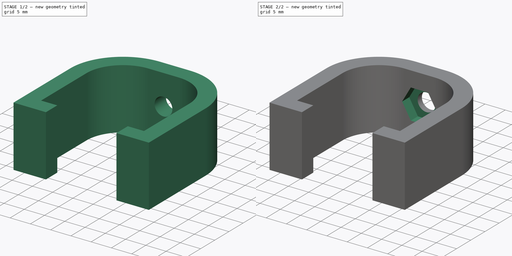
[diagram: build sequence overview — one tinted view per stage of 2, left to right]
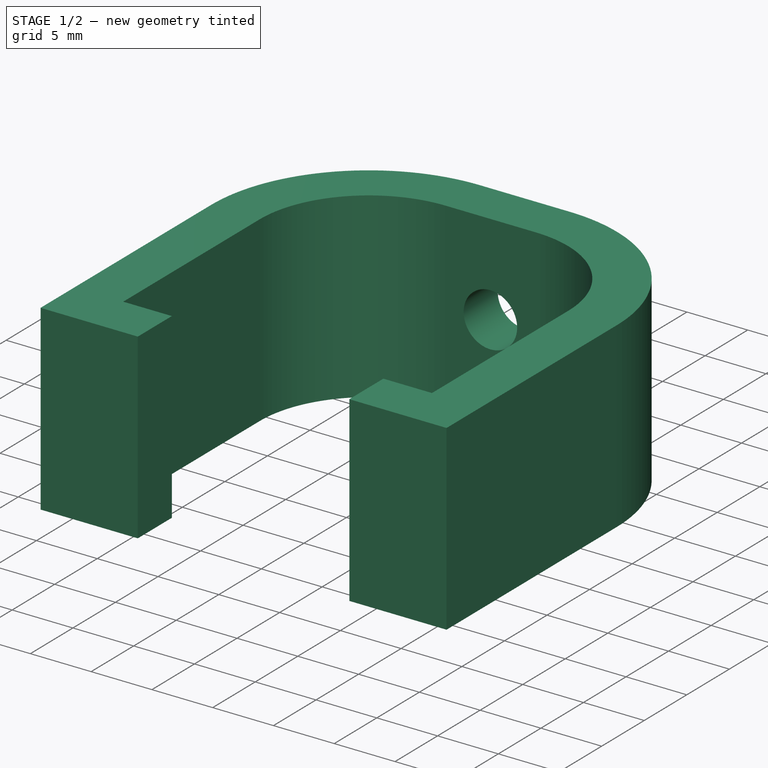
[diagram: stage 1 of 2 — iso view after this stage's code; geometry added in this stage tinted green]
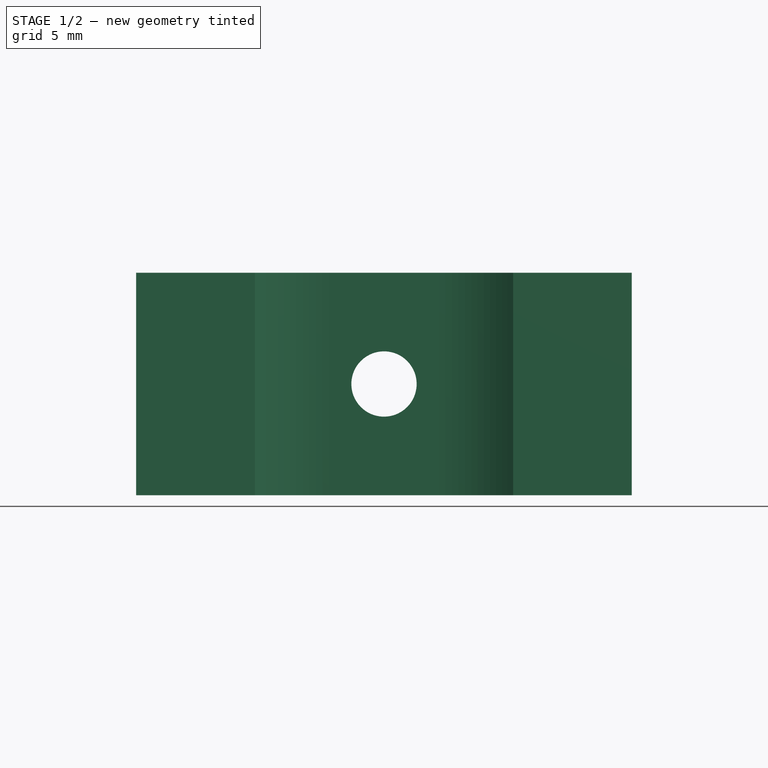
[diagram: stage 1 of 2 — front view after this stage's code; geometry added in this stage tinted green]
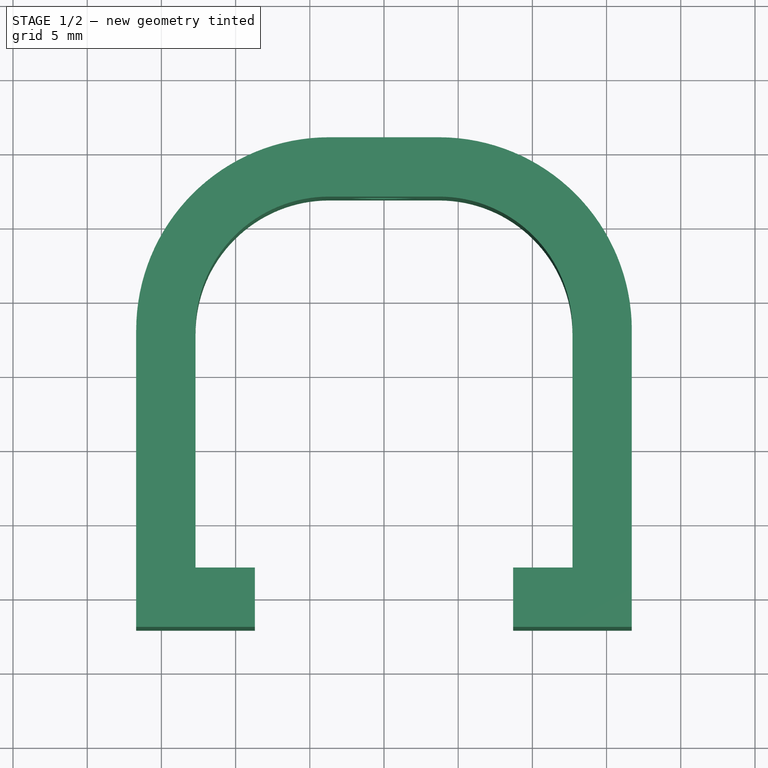
[diagram: stage 1 of 2 — top view after this stage's code; geometry added in this stage tinted green]
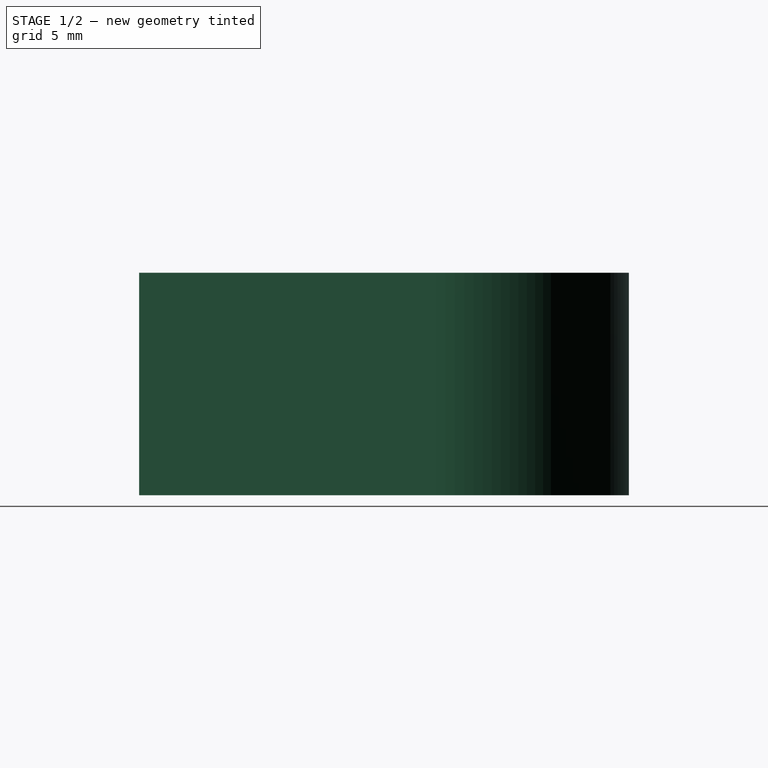
[diagram: stage 1 of 2 — right view after this stage's code; geometry added in this stage tinted green]
FCSTD DOCUMENT  (FreeCAD 0.18R16131 (Git))
Label: pen_holder_bracket
License: All rights reserved
LicenseURL: http://en.wikipedia.org/wiki/All_rights_reserved
objects: Sketcher::SketchObject×3, PartDesign::Pocket×2, PartDesign::Pad×1, PartDesign::Body×1
note: 10 computed .brp shape members not serialized (recipe doc carries the construction recipe); baked Part::Feature solids carry a one-line shape summary decoded from their .brp

FEATURE [Sketcher::SketchObject] Sketch
  MapMode = 5
  Support = -> [XY_Plane]
  sketch-geometry (16):
    g0: LineSegment StartX=-12.7 StartY=-13.087 StartZ=0 EndX=-8.7 EndY=-13.087 EndZ=0
    g1: LineSegment StartX=-8.7 StartY=-13.087 StartZ=0 EndX=-8.7 EndY=-17.087 EndZ=0
    g2: LineSegment StartX=-8.7 StartY=-17.087 StartZ=0 EndX=-16.7 EndY=-17.087 EndZ=0
    g3: LineSegment StartX=-16.7 StartY=-17.087 StartZ=0 EndX=-16.7 EndY=2.91302 EndZ=0
    g4: LineSegment StartX=-3.7 StartY=15.913 StartZ=0 EndX=3.7 EndY=15.913 EndZ=0
    g5: LineSegment StartX=16.7 StartY=2.91302 StartZ=0 EndX=16.7 EndY=-17.087 EndZ=0
    g6: LineSegment StartX=16.7 StartY=-17.087 StartZ=0 EndX=8.7 EndY=-17.087 EndZ=0
    g7: LineSegment StartX=8.7 StartY=-17.087 StartZ=0 EndX=8.7 EndY=-13.087 EndZ=0
    g8: LineSegment StartX=8.7 StartY=-13.087 StartZ=0 EndX=12.7 EndY=-13.087 EndZ=0
    g9: LineSegment StartX=12.7 StartY=-13.087 StartZ=0 EndX=12.7 EndY=2.91302 EndZ=0
    g10: LineSegment StartX=3.7 StartY=11.913 StartZ=0 EndX=-3.7 EndY=11.913 EndZ=0
    g11: LineSegment StartX=-12.7 StartY=2.91302 StartZ=0 EndX=-12.7 EndY=-13.087 EndZ=0
    g12: ArcOfCircle CenterX=-3.7 CenterY=2.91302 CenterZ=0 NormalX=0 NormalY=0 NormalZ=1 AngleXU=0 Radius=9 StartAngle=1.5708 EndAngle=3.14159
    g13: ArcOfCircle CenterX=3.7 CenterY=2.91302 CenterZ=0 NormalX=0 NormalY=0 NormalZ=1 AngleXU=0 Radius=9 StartAngle=1.11e-14 EndAngle=1.5708
    g14: ArcOfCircle CenterX=-3.7 CenterY=2.91302 CenterZ=0 NormalX=0 NormalY=0 NormalZ=1 AngleXU=0 Radius=13 StartAngle=1.5708 EndAngle=3.14159
    g15: ArcOfCircle CenterX=3.7 CenterY=2.91302 CenterZ=0 NormalX=0 NormalY=0 NormalZ=1 AngleXU=0 Radius=13 StartAngle=0 EndAngle=1.5708
  constraints (40):
    c: Coincident(g0,g1)
    c: Coincident(g1,g2)
    c: Coincident(g2,g3)
    c: Coincident(g5,g6)
    c: Coincident(g6,g7)
    c: Coincident(g7,g8)
    c: Coincident(g8,g9)
    c: Coincident(g11,g0)
    c: Vertical(g3)
    c: Vertical(g11)
    c: Vertical(g9)
    c: Vertical(g5)
    c: Vertical(g7)
    c: Vertical(g1)
    c: Horizontal(g4)
    c: Horizontal(g10)
    c: Horizontal(g0)
    c: Horizontal(g2)
    c: Horizontal(g6)
    c: DistanceY(g1,g0) = 4
    c: DistanceX(g0,g0) = 4
    c: Symmetric(g0,g7,g-2)
    c: Symmetric(g0,g8,g-2)
    c: Symmetric(g2,g5,g-2)
    c: DistanceX(g1,g6) = 17.4
    c: Tangent(g10,g12) = -1.5708
    c: Tangent(g11,g12) = -1.5708
    c: Tangent(g9,g13) = -1.5708
    c: Tangent(g10,g13) = -1.5708
    c: Tangent(g3,g14) = 1.5708
    c: Tangent(g4,g14) = 1.5708
    c: Tangent(g4,g15) = 1.5708
    c: Tangent(g5,g15) = 1.5708
    c: Equal(g13,g12)
    c: Equal(g14,g15)
    c: Radius(g13) = 9
    c: Radius(g15) = 13
    c: DistanceY(g10,g4) = 4
    c: DistanceY(g8,g10) = 25
    c: DistanceX(g3,g11) = 4
FEATURE [PartDesign::Pad] Pad
  Length = 15
  Length2 = 100
  Profile = -> Sketch
  Type = 0
FEATURE [Sketcher::SketchObject] Sketch001
  MapMode = 5
  Placement = pos=(0,0,0) rot=(1,0,0;1.5708rad)
  Support = -> [XZ_Plane]
  sketch-geometry (1):
    g0: Circle CenterX=0 CenterY=7.5 CenterZ=0 NormalX=0 NormalY=0 NormalZ=1 AngleXU=0 Radius=2.2
  constraints (3):
    c: PointOnObject(g0,g-2)
    c: DistanceY(g-1,g0) = 7.5
    c: Radius(g0) = 2.2
FEATURE [PartDesign::Pocket] Pocket
  BaseFeature = -> Pad
  Length = 5
  Length2 = 100
  Profile = -> Sketch001
  Type = 1
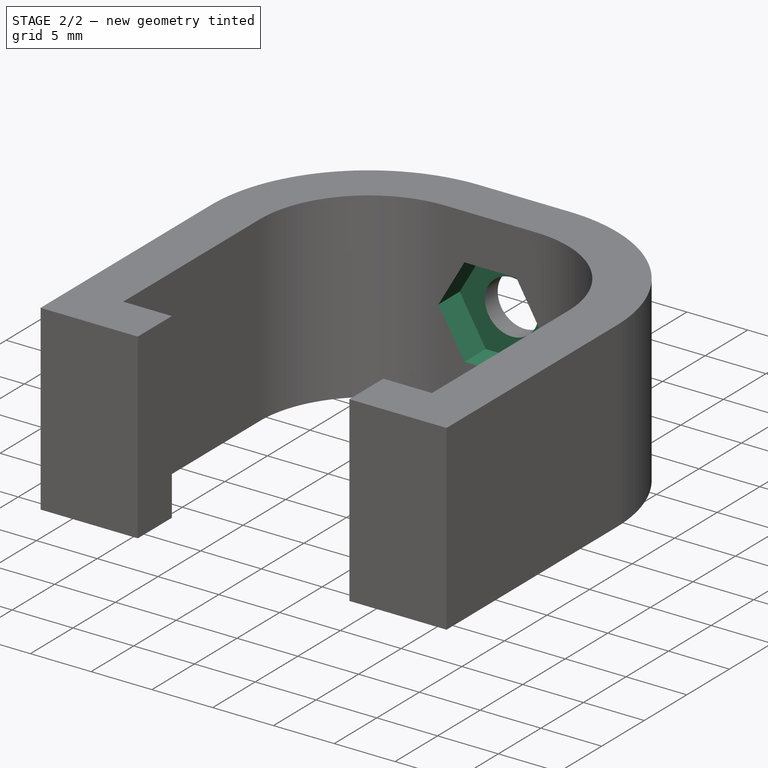
[diagram: stage 2 of 2 — iso view after this stage's code; geometry added in this stage tinted green]
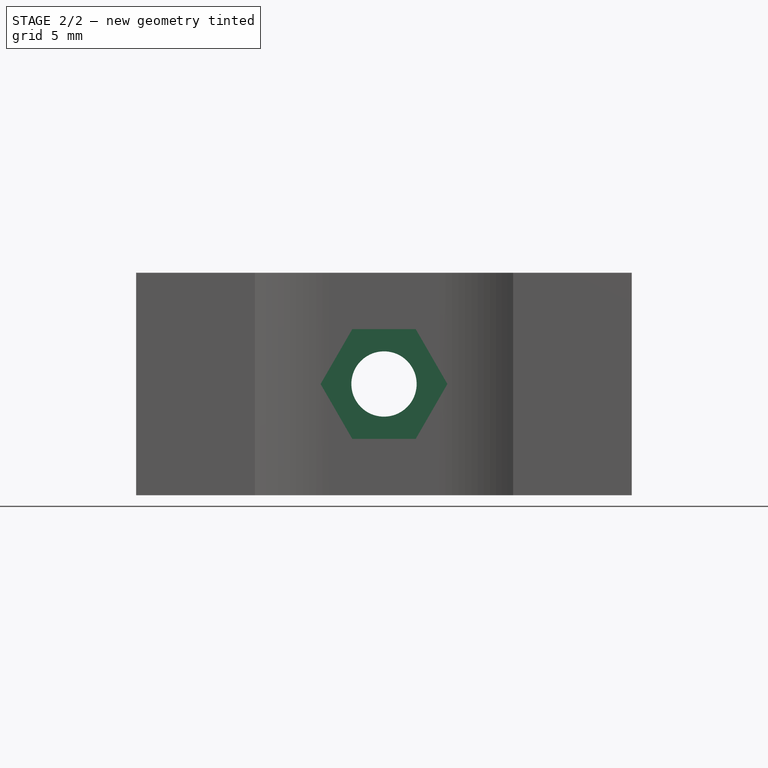
[diagram: stage 2 of 2 — front view after this stage's code; geometry added in this stage tinted green]
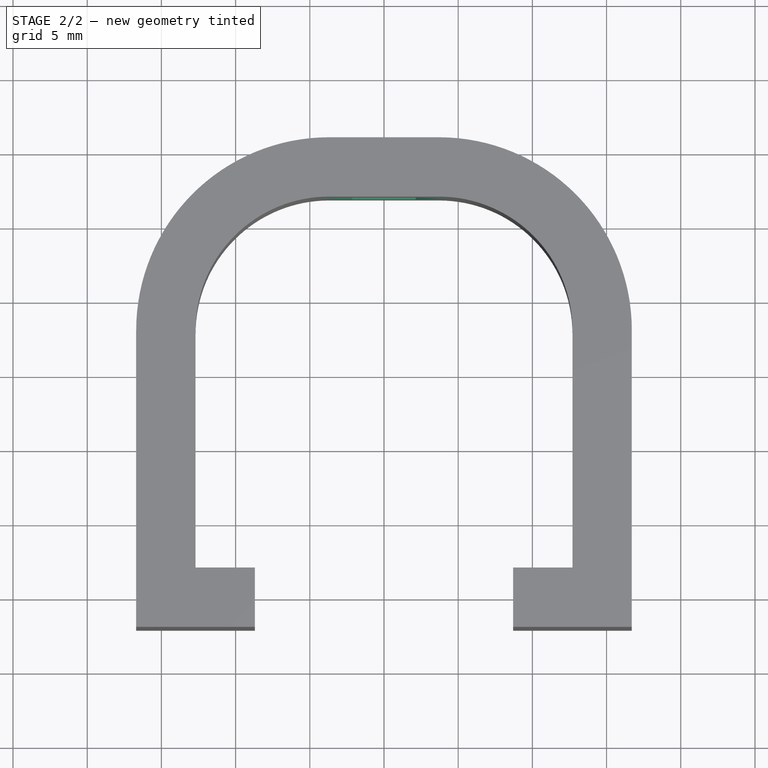
[diagram: stage 2 of 2 — top view after this stage's code; geometry added in this stage tinted green]
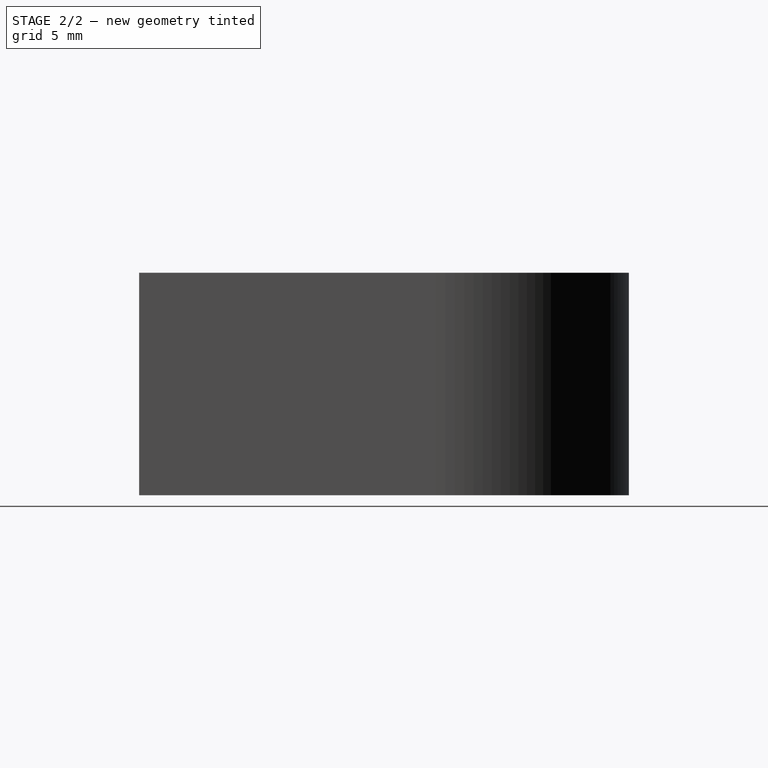
[diagram: stage 2 of 2 — right view after this stage's code; geometry added in this stage tinted green]
FEATURE [Sketcher::SketchObject] Sketch002
  MapMode = 5
  Placement = pos=(0,11.913,0) rot=(1,0,0;1.5708rad)
  Support = -> [Pocket]
  sketch-geometry (7):
    g0: LineSegment StartX=2.1362 StartY=11.2 StartZ=0 EndX=-2.1362 EndY=11.2 EndZ=0
    g1: LineSegment StartX=-2.1362 StartY=11.2 StartZ=0 EndX=-4.27239 EndY=7.5 EndZ=0
    g2: LineSegment StartX=-4.27239 StartY=7.5 StartZ=0 EndX=-2.1362 EndY=3.8 EndZ=0
    g3: LineSegment StartX=-2.1362 StartY=3.8 StartZ=0 EndX=2.1362 EndY=3.8 EndZ=0
    g4: LineSegment StartX=2.1362 StartY=3.8 StartZ=0 EndX=4.27239 EndY=7.5 EndZ=0
    g5: LineSegment StartX=4.27239 StartY=7.5 StartZ=0 EndX=2.1362 EndY=11.2 EndZ=0
    g6: Circle [constr] CenterX=0 CenterY=7.5 CenterZ=0 NormalX=0 NormalY=0 NormalZ=1 AngleXU=0 Radius=4.27239
  constraints (17):
    c: Coincident(g0,g1)
    c: Coincident(g1,g2)
    c: Coincident(g2,g3)
    c: Coincident(g3,g4)
    c: Coincident(g4,g5)
    c: Coincident(g5,g0)
    c: Equal(g0, g1-g5) x5
    c: PointOnObject(g0,g6)
    c: PointOnObject(g1,g6)
    c: PointOnObject(g2,g6)
    c: PointOnObject(g3,g6)
    c: PointOnObject(g4,g6)
    c: PointOnObject(g5,g6)
    c: Horizontal(g3)
    c: PointOnObject(g6,g-2)
    c: DistanceY(g-1,g6) = 7.5
    c: DistanceY(g3,g0) = 7.4
FEATURE [PartDesign::Pocket] Pocket001
  BaseFeature = -> Pocket
  Length = 5
  Length2 = 100
  Midplane = true
  Profile = -> Sketch002
  Type = 0
FEATURE [PartDesign::Body] Body
  Group = -> [Sketch,Pad,Sketch001,Pocket,Sketch002,Pocket001]
  Origin = -> Origin
  Tip = -> Pocket001
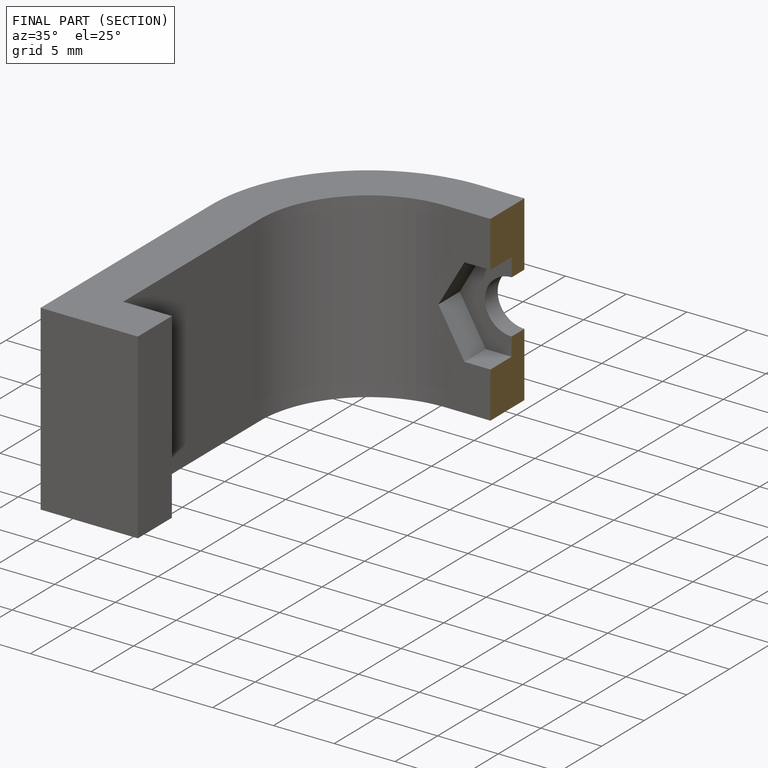
[diagram: finished part — half-section view (interior)]
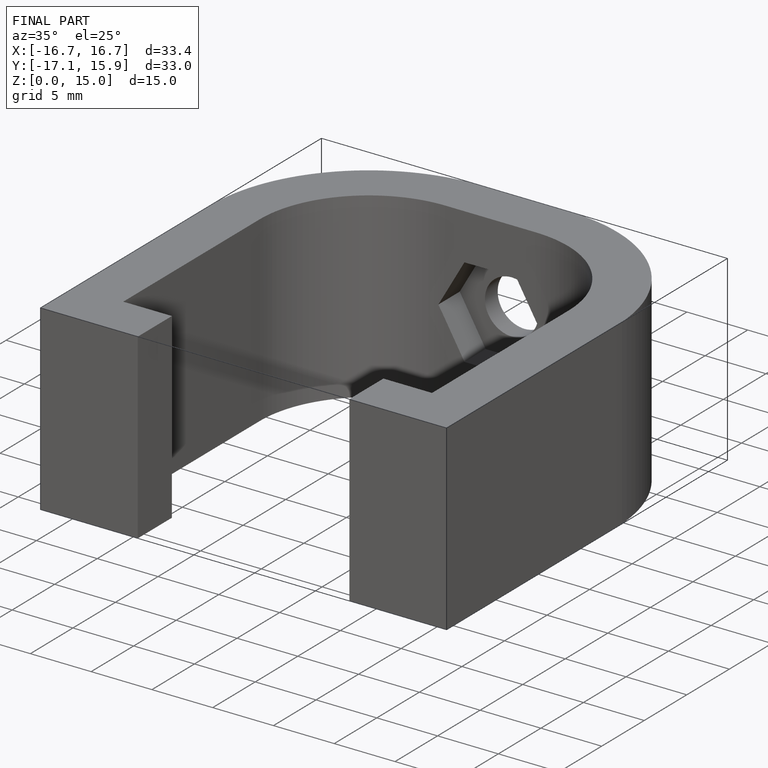
[diagram: finished part — iso view with bounding-box wireframe]
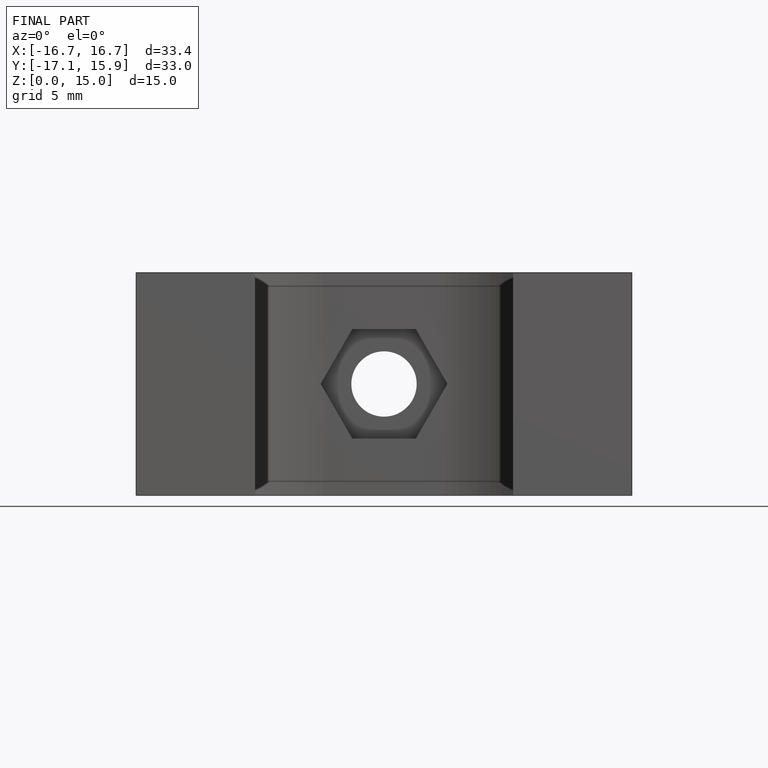
[diagram: finished part — front view with bounding-box wireframe]
